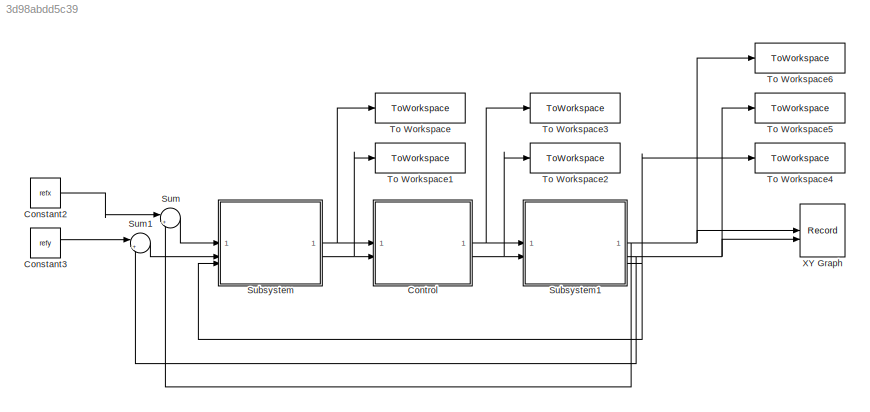
MODEL slx_3d98abdd5c39
KIND model
CONFIG AbsTol = auto
CONFIG EnableMultiTasking = off
CONFIG FixedStep = Ts
CONFIG MaxStep = auto
CONFIG MinStep = auto
CONFIG RelTol = 1e-3
CONFIG SampleTimeConstraint = Unconstrained
CONFIG SolverName = FixedStepAuto
CONFIG StartTime = 0.0
CONFIG StopTime = 10.0
BLOCK [Constant] Constant2
  Value = refx
BLOCK [Constant] Constant3
  Value = refy
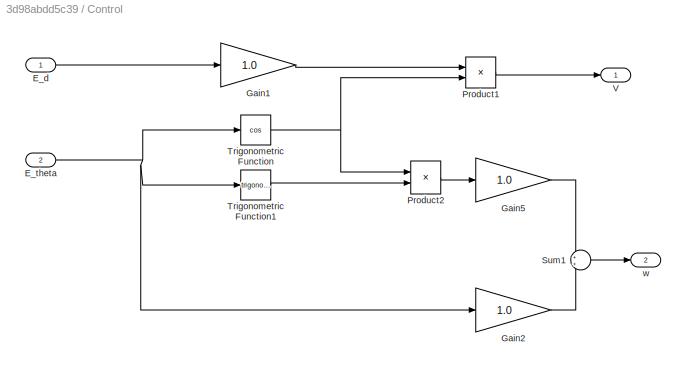
BLOCK [SubSystem] Control
BLOCK [Inport] Control/E_d
BLOCK [Inport] Control/E_theta
  Port = 2
BLOCK [Gain] Control/Gain1
  Gain = 1.0
BLOCK [Gain] Control/Gain2
  Gain = 1.0
BLOCK [Gain] Control/Gain5
  Gain = 1.0
BLOCK [Product] Control/Product1
BLOCK [Product] Control/Product2
BLOCK [Sum] Control/Sum1
BLOCK [Trigonometry] Control/Trigonometric Function
  Operator = cos
BLOCK [Trigonometry] Control/Trigonometric Function1
BLOCK [Outport] Control/V
  VectorParamsAs1DForOutWhenUnconnected = off
BLOCK [Outport] Control/w
  Port = 2
  VectorParamsAs1DForOutWhenUnconnected = off
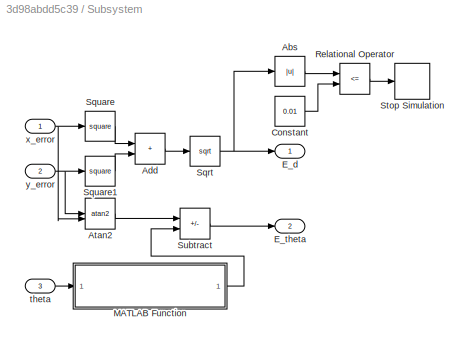
BLOCK [SubSystem] Subsystem
BLOCK [Abs] Subsystem/Abs
  SaturateOnIntegerOverflow = off
BLOCK [Sum] Subsystem/Add
  IconShape = rectangular
BLOCK [Trigonometry] Subsystem/Atan2
  Operator = atan2
BLOCK [Constant] Subsystem/Constant
  Value = 0.01
BLOCK [Outport] Subsystem/E_d
BLOCK [Outport] Subsystem/E_theta
  Port = 2
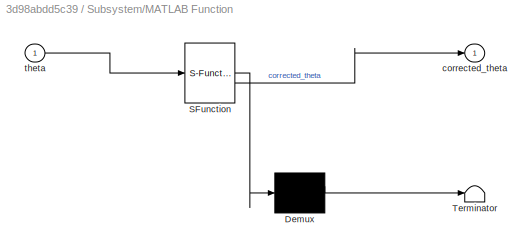
BLOCK [SubSystem] Subsystem/MATLAB Function
  ErrorFcn = Stateflow.Translate.translate
  LibrarySourceBlock = simulink/User-Defined\nFunctions/MATLAB Function
  PermitHierarchicalResolution = ExplicitOnly
  SFBlockType = MATLAB Function
  TreatAsAtomicUnit = on
BLOCK [Demux] Subsystem/MATLAB Function/ Demux 
  Outputs = 1
BLOCK [S-Function] Subsystem/MATLAB Function/ SFunction 
  EnableBusSupport = on
  FunctionName = sf_sfun
  PortCounts = [1 2]
  SFcnIsStateOwnerBlock = off
  SFunctionDeploymentMode = off
  Tag = Stateflow S-Function 2
BLOCK [Terminator] Subsystem/MATLAB Function/ Terminator 
BLOCK [Outport] Subsystem/MATLAB Function/corrected_theta
BLOCK [Inport] Subsystem/MATLAB Function/theta
BLOCK [RelationalOperator] Subsystem/Relational Operator
  InputSameDT = off
  Operator = <=
  OutDataTypeStr = boolean
  RndMeth = Simplest
BLOCK [Sqrt] Subsystem/Sqrt
BLOCK [Math] Subsystem/Square
  Operator = square
BLOCK [Math] Subsystem/Square1
  Operator = square
BLOCK [Stop] Subsystem/Stop Simulation
BLOCK [Sum] Subsystem/Subtract
  IconShape = rectangular
  Inputs = +-
BLOCK [Inport] Subsystem/theta
  Port = 3
BLOCK [Inport] Subsystem/x_error
BLOCK [Inport] Subsystem/y_error
  Port = 2
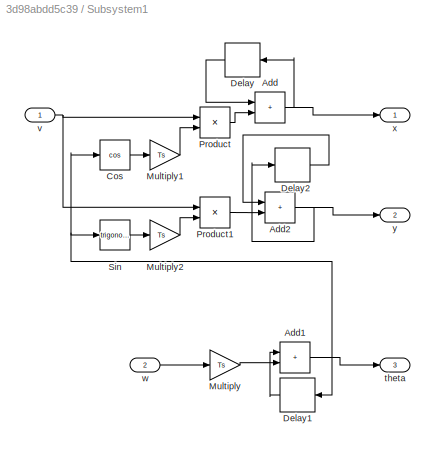
BLOCK [SubSystem] Subsystem1
BLOCK [Sum] Subsystem1/Add
  IconShape = rectangular
BLOCK [Sum] Subsystem1/Add1
  IconShape = rectangular
BLOCK [Sum] Subsystem1/Add2
  IconShape = rectangular
BLOCK [Trigonometry] Subsystem1/Cos
  Operator = cos
BLOCK [Delay] Subsystem1/Delay
  InputPortMap = u0
BLOCK [Delay] Subsystem1/Delay1
  InputPortMap = u0
BLOCK [Delay] Subsystem1/Delay2
  InputPortMap = u0
BLOCK [Gain] Subsystem1/Multiply
  Gain = Ts
BLOCK [Gain] Subsystem1/Multiply1
  Gain = Ts
BLOCK [Gain] Subsystem1/Multiply2
  Gain = Ts
BLOCK [Product] Subsystem1/Product
BLOCK [Product] Subsystem1/Product1
BLOCK [Trigonometry] Subsystem1/Sin
BLOCK [Outport] Subsystem1/theta
  Port = 3
BLOCK [Inport] Subsystem1/v
BLOCK [Inport] Subsystem1/w
  Port = 2
BLOCK [Outport] Subsystem1/x
BLOCK [Outport] Subsystem1/y
  Port = 2
BLOCK [Sum] Sum
  Inputs = |+-
BLOCK [Sum] Sum1
  Inputs = |+-
BLOCK [ToWorkspace] To Workspace
  FixptAsFi = on
  MaxDataPoints = inf
  SampleTime = -1
  SaveFormat = Timeseries
  VariableName = E_d
BLOCK [ToWorkspace] To Workspace1
  FixptAsFi = on
  MaxDataPoints = inf
  SampleTime = -1
  SaveFormat = Timeseries
  VariableName = E_theta
BLOCK [ToWorkspace] To Workspace2
  FixptAsFi = on
  MaxDataPoints = inf
  SampleTime = -1
  SaveFormat = Timeseries
  VariableName = W
BLOCK [ToWorkspace] To Workspace3
  FixptAsFi = on
  MaxDataPoints = inf
  SampleTime = -1
  SaveFormat = Timeseries
  VariableName = V
BLOCK [ToWorkspace] To Workspace4
  FixptAsFi = on
  MaxDataPoints = inf
  SampleTime = -1
  SaveFormat = Timeseries
  VariableName = theta
BLOCK [ToWorkspace] To Workspace5
  FixptAsFi = on
  MaxDataPoints = inf
  SampleTime = -1
  SaveFormat = Timeseries
  VariableName = y
BLOCK [ToWorkspace] To Workspace6
  FixptAsFi = on
  MaxDataPoints = inf
  SampleTime = -1
  SaveFormat = Timeseries
  VariableName = x
BLOCK [Record] XY Graph
  CompatibilityTag = XY
  FileSettingsInternal = {"entries":[{"content":{"excelSettings":{"content":{},"type":"Streamout.ExcelSettings"}},"type":"Streamout.FileSettingStorage","uuid":""}],"packageUris":["http:\/\/schema.mathworks.com\/mf0\/streamout_blocks\/R2020a"],"version":"1.0"}
  Layout = [1 1]
  SignalsInternal = {"entries":[{"content":{"signals":[{"content":{"blockPath":[],"dimensions":[1],"domain":"","lineColor":"#a2142f","plots":[1],"port":1,"signalID":1754,"signalName":"XY Graph:1"},"type":"RecordBlkView.Signal","uuid":""},{"content":{"blockPath":[],"dimensions":[1],"domain":"","lineColor":"#139fff","plots":[1],"port":2,"signalID":1757,"signalName":"XY Graph:2"},"type":"RecordBlkView.Signal","uuid":""}...<+146ch>
  VisualizationBindings = {"xyplotplugin":{"info":[{"series":[{"bindingParametersList":[{"parameter":"X-Axis","signalID":1754,"signalName":"XY Graph:1"},{"parameter":"Y-Axis","signalID":1757,"signalName":"XY Graph:2"}],"seriesID":36590}],"subplotID":1}]}}
LINE Constant2:1 -> Sum:1
LINE Constant3:1 -> Sum1:1
LINE Control/E_d:1 -> Control/Gain1:1
NET Control/E_theta:1 -> Control/Gain2:1, Control/Trigonometric Function1:1, Control/Trigonometric Function:1
LINE Control/Gain1:1 -> Control/Product1:1
LINE Control/Gain2:1 -> Control/Sum1:2
LINE Control/Gain5:1 -> Control/Sum1:1
LINE Control/Product1:1 -> Control/V:1
LINE Control/Product2:1 -> Control/Gain5:1
LINE Control/Sum1:1 -> Control/w:1
LINE Control/Trigonometric Function1:1 -> Control/Product2:2
NET Control/Trigonometric Function:1 -> Control/Product1:2, Control/Product2:1
NET Control:1 -> Subsystem1:1, To Workspace3:1
NET Control:2 -> Subsystem1:2, To Workspace2:1
LINE Subsystem/Abs:1 -> Subsystem/Relational Operator:1
LINE Subsystem/Add:1 -> Subsystem/Sqrt:1
LINE Subsystem/Atan2:1 -> Subsystem/Subtract:1
LINE Subsystem/Constant:1 -> Subsystem/Relational Operator:2
LINE Subsystem/MATLAB Function:1 -> Subsystem/Subtract:2
LINE Subsystem/Relational Operator:1 -> Subsystem/Stop Simulation:1
NET Subsystem/Sqrt:1 -> Subsystem/Abs:1, Subsystem/E_d:1
LINE Subsystem/Square1:1 -> Subsystem/Add:2
LINE Subsystem/Square:1 -> Subsystem/Add:1
LINE Subsystem/Subtract:1 -> Subsystem/E_theta:1
LINE Subsystem/theta:1 -> Subsystem/MATLAB Function:1
NET Subsystem/x_error:1 -> Subsystem/Atan2:2, Subsystem/Square:1
NET Subsystem/y_error:1 -> Subsystem/Atan2:1, Subsystem/Square1:1
NET Subsystem1/Add1:1 -> Subsystem1/Cos:1, Subsystem1/Delay1:1, Subsystem1/Sin:1, Subsystem1/theta:1
NET Subsystem1/Add2:1 -> Subsystem1/Delay2:1, Subsystem1/y:1
NET Subsystem1/Add:1 -> Subsystem1/Delay:1, Subsystem1/x:1
LINE Subsystem1/Cos:1 -> Subsystem1/Multiply1:1
LINE Subsystem1/Delay1:1 -> Subsystem1/Add1:1
LINE Subsystem1/Delay2:1 -> Subsystem1/Add2:1
LINE Subsystem1/Delay:1 -> Subsystem1/Add:1
LINE Subsystem1/Multiply1:1 -> Subsystem1/Product:2
LINE Subsystem1/Multiply2:1 -> Subsystem1/Product1:2
LINE Subsystem1/Multiply:1 -> Subsystem1/Add1:2
LINE Subsystem1/Product1:1 -> Subsystem1/Add2:2
LINE Subsystem1/Product:1 -> Subsystem1/Add:2
LINE Subsystem1/Sin:1 -> Subsystem1/Multiply2:1
NET Subsystem1/v:1 -> Subsystem1/Product1:1, Subsystem1/Product:1
LINE Subsystem1/w:1 -> Subsystem1/Multiply:1
NET Subsystem1:1 -> Sum:2, To Workspace6:1, XY Graph:1
NET Subsystem1:2 -> Sum1:2, To Workspace5:1, XY Graph:2
NET Subsystem1:3 -> Subsystem:3, To Workspace4:1
NET Subsystem:1 -> Control:1, To Workspace:1
NET Subsystem:2 -> Control:2, To Workspace1:1
LINE Sum1:1 -> Subsystem:2
LINE Sum:1 -> Subsystem:1
note: NET lines group one-source signal fan-out (src -> all destinations, sorted); 1:1 wires keep LINE
CHART Subsystem/MATLAB Function states=1 transitions=1
  STATE_LABEL 'eML_blk_kernel()'
  STATE_LABEL 'SCRIPT:\nfunction corrected_theta = adjustTheta(theta)\n    % Si theta es mayor o igual a pi, restarle 2*pi\n    if theta >= pi\n        corrected_theta = theta - 2*pi;\n    % Si theta es menor o igual a -pi, sumarle 2*pi\n    elseif theta <= -pi\n        corrected_theta = theta + 2*pi;\n    % En otros casos, no es necesario ajuste\n    else\n        corrected_theta = theta;\n    end\nend'
CHART  states=0 transitions=0
